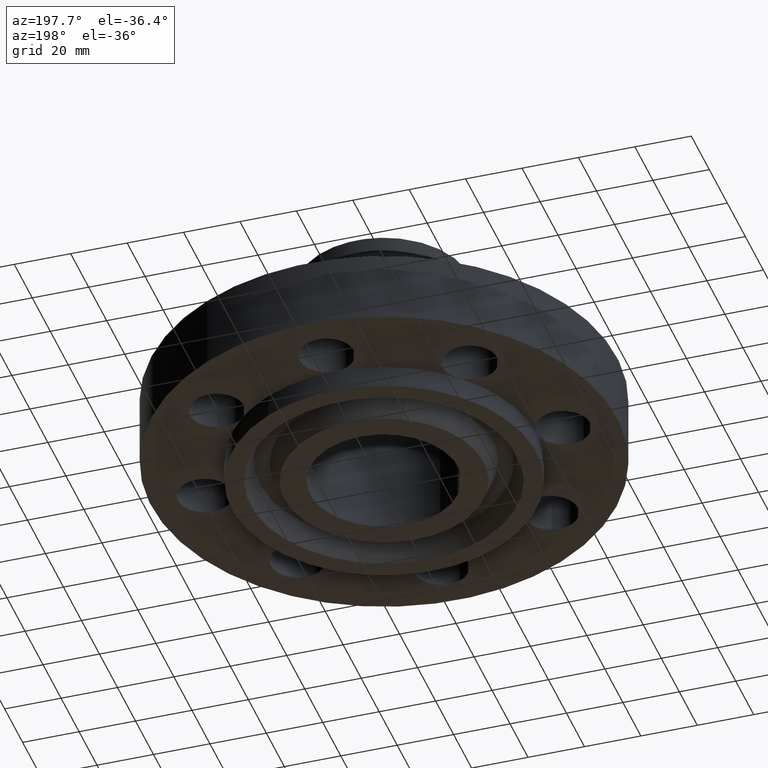
[diagram: clean part render]
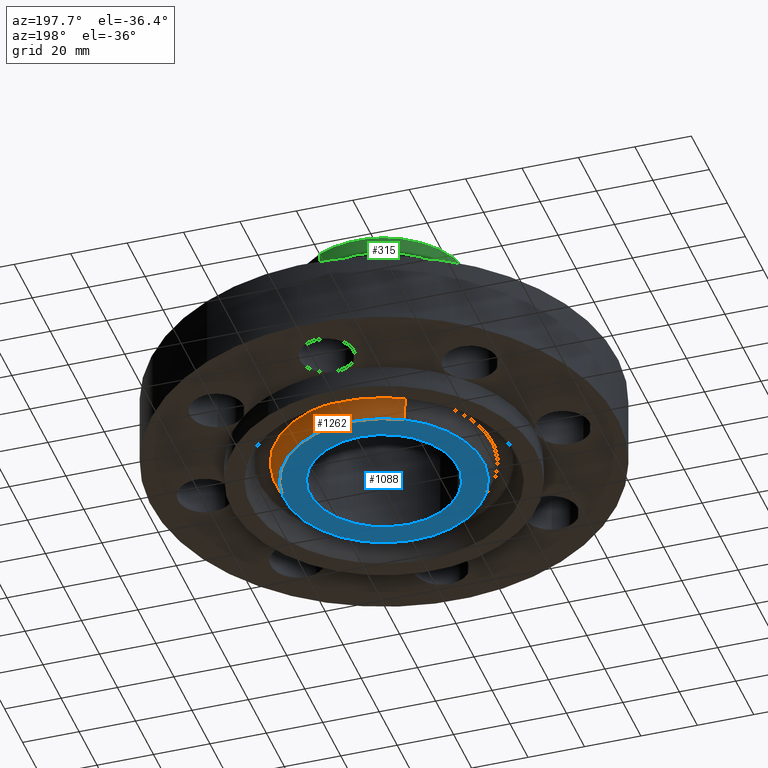
[diagram: same view with three faces highlighted in distinct colors, each labeled with its STEP entity id]
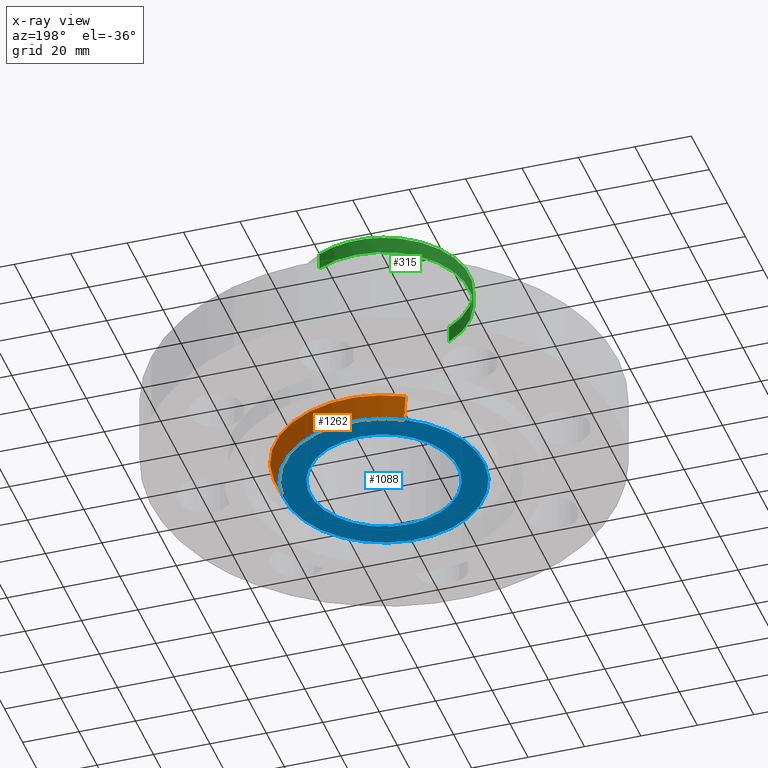
[diagram: x-ray of the same camera — body ghosted, the three highlighted faces saturated]
A machine part, auxiliary view with three faces highlighted in distinct colors.
The next image is the same camera in x-ray (body ghosted, the three faces saturated) — at least one of them is partly hidden behind the body in this view.
Their STEP definitions:

[orange] entity #1262 — the highlighted conical surface has half-angle 23 deg.
#1068=AXIS2_PLACEMENT_3D('Circle Axis2P3D',#1066,#1067,$) ;
#1212=AXIS2_PLACEMENT_3D('Circle Axis2P3D',#1210,#1211,$) ;
#1244=AXIS2_PLACEMENT_3D('Cone Axis2P3D',#1241,#1242,#1243) ;
#1066=CARTESIAN_POINT('Axis2P3D Location',(2.79741234551E-016,0.,-0.313000000001)) ;
#1070=CARTESIAN_POINT('Vertex',(-0.666641211432,1.22027855231,-0.313000000001)) ;
#1072=CARTESIAN_POINT('Vertex',(0.666641211432,-1.22027855231,-0.313000000001)) ;
#1207=CARTESIAN_POINT('Vertex',(0.726494335026,-1.32983896016,-0.0188873350169)) ;
#1210=CARTESIAN_POINT('Axis2P3D Location',(0.,0.,-0.0188873350169)) ;
#1214=CARTESIAN_POINT('Vertex',(-0.726494335026,1.32983896016,-0.0188873350169)) ;
#1241=CARTESIAN_POINT('Axis2P3D Location',(0.,0.,-0.373000000001)) ;
#1246=CARTESIAN_POINT('Line Origine',(-0.696567773229,1.27505875624,-0.165943667509)) ;
#1251=CARTESIAN_POINT('Line Origine',(0.696567773229,-1.27505875624,-0.165943667509)) ;
#1067=DIRECTION('Axis2P3D Direction',(0.,0.,-0.0393700787402)) ;
#1211=DIRECTION('Axis2P3D Direction',(0.,0.,0.0393700787402)) ;
#1242=DIRECTION('Axis2P3D Direction',(0.,0.,0.0393700787402)) ;
#1243=DIRECTION('Axis2P3D XDirection',(-0.0188750212049,0.0345504945626,0.)) ;
#1247=DIRECTION('Vector Direction',(-0.00737505833565,0.0134999537303,0.0362403485611)) ;
#1252=DIRECTION('Vector Direction',(0.00737505833565,-0.0134999537303,0.0362403485611)) ;
#1248=VECTOR('Line Direction',#1247,0.0393700787402) ;
#1253=VECTOR('Line Direction',#1252,0.0393700787402) ;
#1257=ORIENTED_EDGE('',*,*,#1250,.F.) ;
#1258=ORIENTED_EDGE('',*,*,#1216,.F.) ;
#1259=ORIENTED_EDGE('',*,*,#1255,.T.) ;
#1260=ORIENTED_EDGE('',*,*,#1074,.F.) ;
#1262=ADVANCED_FACE('PartBody',(#1261),#1245,.T.) ;
#1069=CIRCLE('generated circle',#1068,1.39050000001) ;
#1213=CIRCLE('generated circle',#1212,1.51534341942) ;
#1245=CONICAL_SURFACE('Cone',#1244,1.36503151103,0.401425727959) ;
#1074=EDGE_CURVE('',#1071,#1073,#1069,.T.) ;
#1216=EDGE_CURVE('',#1208,#1215,#1213,.T.) ;
#1250=EDGE_CURVE('',#1215,#1071,#1249,.F.) ;
#1255=EDGE_CURVE('',#1208,#1073,#1254,.F.) ;
#1256=EDGE_LOOP('',(#1257,#1258,#1259,#1260)) ;
#1261=FACE_OUTER_BOUND('',#1256,.T.) ;
#1249=LINE('Line',#1246,#1248) ;
#1254=LINE('Line',#1251,#1253) ;
#1071=VERTEX_POINT('',#1070) ;
#1073=VERTEX_POINT('',#1072) ;
#1208=VERTEX_POINT('',#1207) ;
#1215=VERTEX_POINT('',#1214) ;

[blue] entity #1088 — the highlighted planar face has unit normal (0, 0, -1).
#371=AXIS2_PLACEMENT_3D('Circle Axis2P3D',#369,#370,$) ;
#395=AXIS2_PLACEMENT_3D('Circle Axis2P3D',#393,#394,$) ;
#1041=AXIS2_PLACEMENT_3D('Plane Axis2P3D',#1038,#1039,#1040) ;
#1068=AXIS2_PLACEMENT_3D('Circle Axis2P3D',#1066,#1067,$) ;
#1077=AXIS2_PLACEMENT_3D('Circle Axis2P3D',#1075,#1076,$) ;
#366=CARTESIAN_POINT('Vertex',(0.495486294149,0.906981577717,-0.313000000001)) ;
#369=CARTESIAN_POINT('Axis2P3D Location',(0.,0.,-0.313000000001)) ;
#373=CARTESIAN_POINT('Vertex',(-0.495486294149,-0.906981577717,-0.313000000001)) ;
#393=CARTESIAN_POINT('Axis2P3D Location',(0.,0.,-0.313000000001)) ;
#1038=CARTESIAN_POINT('Axis2P3D Location',(0.,1.0335,-0.313000000001)) ;
#1066=CARTESIAN_POINT('Axis2P3D Location',(2.79741234551E-016,0.,-0.313000000001)) ;
#1070=CARTESIAN_POINT('Vertex',(-0.666641211432,1.22027855231,-0.313000000001)) ;
#1072=CARTESIAN_POINT('Vertex',(0.666641211432,-1.22027855231,-0.313000000001)) ;
#1075=CARTESIAN_POINT('Axis2P3D Location',(1.39870617276E-016,0.,-0.313000000001)) ;
#370=DIRECTION('Axis2P3D Direction',(0.,0.,-0.0393700787402)) ;
#394=DIRECTION('Axis2P3D Direction',(0.,0.,-0.0393700787402)) ;
#1039=DIRECTION('Axis2P3D Direction',(0.,0.,-0.0393700787402)) ;
#1040=DIRECTION('Axis2P3D XDirection',(0.0393700787402,0.,0.)) ;
#1067=DIRECTION('Axis2P3D Direction',(0.,0.,-0.0393700787402)) ;
#1076=DIRECTION('Axis2P3D Direction',(0.,0.,-0.0393700787402)) ;
#1081=ORIENTED_EDGE('',*,*,#1074,.T.) ;
#1082=ORIENTED_EDGE('',*,*,#1079,.T.) ;
#1085=ORIENTED_EDGE('',*,*,#375,.F.) ;
#1086=ORIENTED_EDGE('',*,*,#397,.F.) ;
#1087=FACE_BOUND('',#1084,.T.) ;
#1088=ADVANCED_FACE('PartBody',(#1083,#1087),#1042,.T.) ;
#372=CIRCLE('generated circle',#371,1.0335) ;
#396=CIRCLE('generated circle',#395,1.0335) ;
#1069=CIRCLE('generated circle',#1068,1.39050000001) ;
#1078=CIRCLE('generated circle',#1077,1.39050000001) ;
#375=EDGE_CURVE('',#367,#374,#372,.T.) ;
#397=EDGE_CURVE('',#374,#367,#396,.T.) ;
#1074=EDGE_CURVE('',#1071,#1073,#1069,.T.) ;
#1079=EDGE_CURVE('',#1073,#1071,#1078,.T.) ;
#1080=EDGE_LOOP('',(#1081,#1082)) ;
#1084=EDGE_LOOP('',(#1085,#1086)) ;
#1083=FACE_OUTER_BOUND('',#1080,.T.) ;
#1042=PLANE('',#1041) ;
#367=VERTEX_POINT('',#366) ;
#374=VERTEX_POINT('',#373) ;
#1071=VERTEX_POINT('',#1070) ;
#1073=VERTEX_POINT('',#1072) ;

[green] entity #315 — the highlighted cylindrical surface (partial cylindrical patch) has radius 30.226 mm, axis along (0, 0, -1).
#247=AXIS2_PLACEMENT_3D('Circle Axis2P3D',#245,#246,$) ;
#260=AXIS2_PLACEMENT_3D('Cylinder Axis2P3D',#257,#258,#259) ;
#298=AXIS2_PLACEMENT_3D('Circle Axis2P3D',#296,#297,$) ;
#305=AXIS2_PLACEMENT_3D('Circle Axis2P3D',#303,#304,$) ;
#223=CARTESIAN_POINT('Vertex',(0.570516390941,1.04432324865,2.58411230182)) ;
#230=CARTESIAN_POINT('Vertex',(-0.570516390941,-1.04432324865,2.58411230182)) ;
#245=CARTESIAN_POINT('Axis2P3D Location',(0.,0.,2.58411230182)) ;
#257=CARTESIAN_POINT('Axis2P3D Location',(0.,0.,1.28350000001)) ;
#262=CARTESIAN_POINT('Line Origine',(-0.570516390941,-1.04432324865,2.70222253804)) ;
#266=CARTESIAN_POINT('Vertex',(-0.570516390941,-1.04432324865,2.82033277426)) ;
#269=CARTESIAN_POINT('Line Origine',(0.570516390941,1.04432324865,2.70222253804)) ;
#273=CARTESIAN_POINT('Vertex',(0.570516390941,1.04432324865,2.82033277426)) ;
#296=CARTESIAN_POINT('Axis2P3D Location',(0.,0.,2.82033277426)) ;
#300=CARTESIAN_POINT('Vertex',(-0.570516390941,1.04432324865,2.82033277426)) ;
#303=CARTESIAN_POINT('Axis2P3D Location',(0.,0.,2.82033277426)) ;
#246=DIRECTION('Axis2P3D Direction',(0.,0.,-0.0393700787402)) ;
#258=DIRECTION('Axis2P3D Direction',(0.,0.,-0.0393700787402)) ;
#259=DIRECTION('Axis2P3D XDirection',(-0.0188750212049,-0.0345504945626,0.)) ;
#263=DIRECTION('Vector Direction',(0.,0.,-0.0393700787402)) ;
#270=DIRECTION('Vector Direction',(0.,0.,-0.0393700787402)) ;
#297=DIRECTION('Axis2P3D Direction',(0.,0.,-0.0393700787402)) ;
#304=DIRECTION('Axis2P3D Direction',(0.,0.,-0.0393700787402)) ;
#264=VECTOR('Line Direction',#263,0.0393700787402) ;
#271=VECTOR('Line Direction',#270,0.0393700787402) ;
#309=ORIENTED_EDGE('',*,*,#275,.F.) ;
#310=ORIENTED_EDGE('',*,*,#249,.F.) ;
#311=ORIENTED_EDGE('',*,*,#268,.T.) ;
#312=ORIENTED_EDGE('',*,*,#302,.F.) ;
#313=ORIENTED_EDGE('',*,*,#307,.T.) ;
#315=ADVANCED_FACE('PartBody',(#314),#261,.T.) ;
#248=CIRCLE('generated circle',#247,1.19) ;
#299=CIRCLE('generated circle',#298,1.19) ;
#306=CIRCLE('generated circle',#305,1.19) ;
#261=CYLINDRICAL_SURFACE('generated cylinder',#260,1.19) ;
#249=EDGE_CURVE('',#231,#224,#248,.T.) ;
#268=EDGE_CURVE('',#231,#267,#265,.F.) ;
#275=EDGE_CURVE('',#224,#274,#272,.F.) ;
#302=EDGE_CURVE('',#301,#267,#299,.F.) ;
#307=EDGE_CURVE('',#301,#274,#306,.T.) ;
#308=EDGE_LOOP('',(#309,#310,#311,#312,#313)) ;
#314=FACE_OUTER_BOUND('',#308,.T.) ;
#265=LINE('Line',#262,#264) ;
#272=LINE('Line',#269,#271) ;
#224=VERTEX_POINT('',#223) ;
#231=VERTEX_POINT('',#230) ;
#267=VERTEX_POINT('',#266) ;
#274=VERTEX_POINT('',#273) ;
#301=VERTEX_POINT('',#300) ;